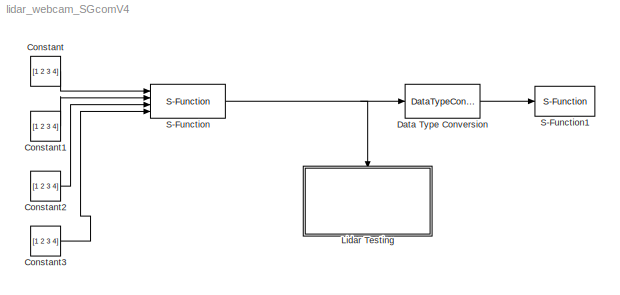
MODEL lidar_webcam_SGcomV4
KIND model
BLOCK [Constant] Constant
  OutDataType = fixdt(1, 16)
  OutDataTypeMode = double
  OutDataTypeStr = double
  OutScaling = 2^0
  Value = [1 2 3 4]
  VectorParams1D = off
BLOCK [Constant] Constant1
  OutDataType = fixdt(1, 16)
  OutDataTypeMode = int32
  OutDataTypeStr = int32
  OutScaling = 2^0
  Value = [1 2 3 4]
  VectorParams1D = off
BLOCK [Constant] Constant2
  OutDataType = fixdt(1, 16)
  OutDataTypeMode = int32
  OutDataTypeStr = int32
  OutScaling = 2^0
  Value = [1 2 3 4]
  VectorParams1D = off
BLOCK [Constant] Constant3
  OutDataType = fixdt(1, 16)
  OutDataTypeMode = int32
  OutDataTypeStr = int32
  OutScaling = 2^0
  Value = [1 2 3 4]
  VectorParams1D = off
BLOCK [DataTypeConversion] Data Type Conversion
  OutDataType = fixdt(1, 16)
  OutDataTypeMode = uint32
  OutDataTypeStr = uint32
  OutScaling = 2^0
  RndMeth = Floor
  SaturateOnIntegerOverflow = off
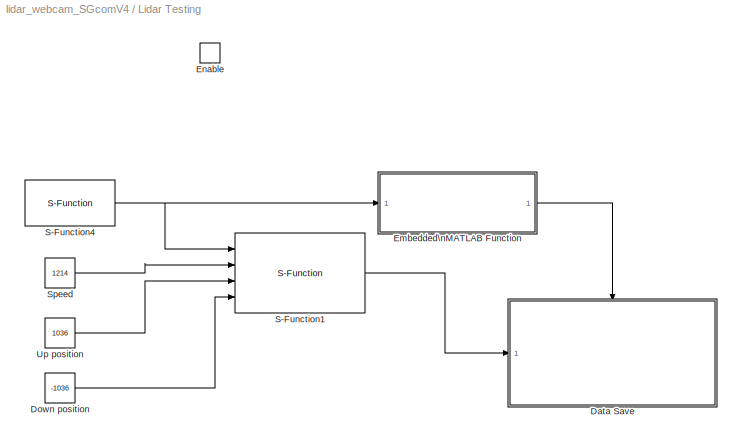
BLOCK [SubSystem] Lidar Testing
  FunctionWithSeparateData = off
  MaskHideContents = off
  MinAlgLoopOccurrences = off
  Opaque = off
  Ports = [0, 0, 1]
  PropExecContextOutsideSubsystem = off
  RTWSystemCode = Auto
  RequestExecContextInheritance = off
  TreatAsAtomicUnit = on
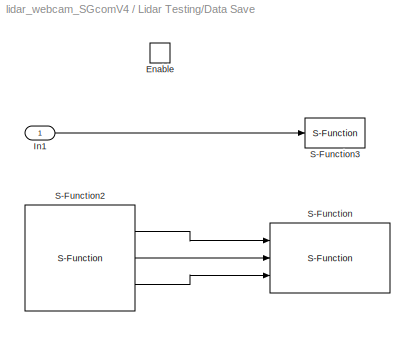
BLOCK [SubSystem] Lidar Testing/Data Save
  FunctionWithSeparateData = off
  MaskHideContents = off
  MinAlgLoopOccurrences = off
  Opaque = off
  Ports = [1, 0, 1]
  PropExecContextOutsideSubsystem = off
  RTWSystemCode = Auto
  RequestExecContextInheritance = off
  TreatAsAtomicUnit = on
BLOCK [EnablePort] Lidar Testing/Data Save/Enable
  Ports = []
BLOCK [Inport] Lidar Testing/Data Save/In1
  IconDisplay = Port number
  OutDataType = fixdt(1, 16)
  OutScaling = 2^0
BLOCK [S-Function] Lidar Testing/Data Save/S-Function
  EnableBusSupport = off
  FunctionName = videoExport_v2
  Ports = [3]
BLOCK [S-Function] Lidar Testing/Data Save/S-Function2
  EnableBusSupport = off
  FunctionName = WebcamTest
  Ports = [0, 3]
BLOCK [S-Function] Lidar Testing/Data Save/S-Function3
  EnableBusSupport = off
  FunctionName = lidarExport
  Ports = [1]
BLOCK [Constant] Lidar Testing/Down position
  OutDataType = fixdt(1, 16)
  OutScaling = 2^0
  Value = -1036
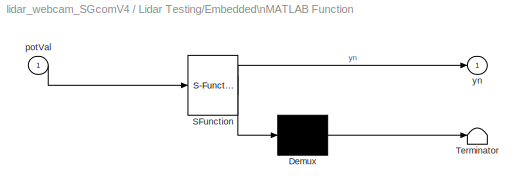
BLOCK [SubSystem] Lidar Testing/Embedded\nMATLAB Function
  FunctionWithSeparateData = off
  MaskDescription = Embedded MATLAB block
  MaskDisplay = disp('check_pot_val');
  MaskHideContents = off
  MaskIconFrame = on
  MaskIconOpaque = off
  MaskIconRotate = none
  MaskIconUnits = autoscale
  MaskPortRotate = default
  MaskSelfModifiable = on
  MaskType = Stateflow
  MinAlgLoopOccurrences = off
  Opaque = off
  PermitHierarchicalResolution = ExplicitOnly
  Ports = [1, 1]
  PropExecContextOutsideSubsystem = off
  RTWSystemCode = Auto
  RequestExecContextInheritance = off
BLOCK [Demux] Lidar Testing/Embedded\nMATLAB Function/ Demux 
  Outputs = 1
  Ports = [1, 1]
BLOCK [S-Function] Lidar Testing/Embedded\nMATLAB Function/ SFunction 
  EnableBusSupport = on
  FunctionName = sf_sfun
  PortCounts = [1 2]
  Ports = [1, 2]
  Tag = Stateflow S-Function lidar_webcam_SGcomV4 2
BLOCK [Terminator] Lidar Testing/Embedded\nMATLAB Function/ Terminator 
BLOCK [Inport] Lidar Testing/Embedded\nMATLAB Function/potVal
  IconDisplay = Port number
  OutDataType = sfix(16)
  OutScaling = 2^0
BLOCK [Outport] Lidar Testing/Embedded\nMATLAB Function/yn
  IconDisplay = Port number
  OutDataType = sfix(16)
  OutScaling = 2^0
BLOCK [EnablePort] Lidar Testing/Enable
  Ports = []
BLOCK [S-Function] Lidar Testing/S-Function1
  EnableBusSupport = off
  FunctionName = lidar_zero_test_v3
  Ports = [4, 1]
BLOCK [S-Function] Lidar Testing/S-Function4
  EnableBusSupport = off
  FunctionName = pot_readerV2
  Ports = [0, 1]
BLOCK [Constant] Lidar Testing/Speed
  OutDataType = fixdt(1, 16)
  OutScaling = 2^0
  Value = 1214
BLOCK [Constant] Lidar Testing/Up position
  OutDataType = fixdt(1, 16)
  OutScaling = 2^0
  Value = 1036
BLOCK [S-Function] S-Function
  EnableBusSupport = off
  FunctionName = serialComV1
  Ports = [4, 1]
BLOCK [S-Function] S-Function1
  EnableBusSupport = off
  FunctionName = printOut
  Ports = [1]
LINE Constant1:1 -> S-Function:2
LINE Constant2:1 -> S-Function:3
LINE Constant3:1 -> S-Function:4
LINE Constant:1 -> S-Function:1
LINE Data Type Conversion:1 -> S-Function1:1
LINE Lidar Testing/Data Save/In1:1 -> Lidar Testing/Data Save/S-Function3:1
LINE Lidar Testing/Data Save/S-Function2:1 -> Lidar Testing/Data Save/S-Function:1
LINE Lidar Testing/Data Save/S-Function2:2 -> Lidar Testing/Data Save/S-Function:2
LINE Lidar Testing/Data Save/S-Function2:3 -> Lidar Testing/Data Save/S-Function:3
LINE Lidar Testing/Down position:1 -> Lidar Testing/S-Function1:4
LINE Lidar Testing/Embedded\nMATLAB Function/ Demux :1 -> Lidar Testing/Embedded\nMATLAB Function/ Terminator :1
LINE Lidar Testing/Embedded\nMATLAB Function/ SFunction :1 -> Lidar Testing/Embedded\nMATLAB Function/ Demux :1
LINE Lidar Testing/Embedded\nMATLAB Function/ SFunction :2 -> Lidar Testing/Embedded\nMATLAB Function/yn:1
LINE Lidar Testing/Embedded\nMATLAB Function/potVal:1 -> Lidar Testing/Embedded\nMATLAB Function/ SFunction :1
LINE Lidar Testing/Embedded\nMATLAB Function:1 -> Lidar Testing/Data Save:enable
LINE Lidar Testing/S-Function1:1 -> Lidar Testing/Data Save:1
NET Lidar Testing/S-Function4:1 -> Lidar Testing/Embedded\nMATLAB Function:1, Lidar Testing/S-Function1:1
LINE Lidar Testing/Speed:1 -> Lidar Testing/S-Function1:2
LINE Lidar Testing/Up position:1 -> Lidar Testing/S-Function1:3
NET S-Function:1 -> Data Type Conversion:1, Lidar Testing:enable
note: NET lines group one-source signal fan-out (src -> all destinations, sorted); 1:1 wires keep LINE
CHART Lidar Testing/Embedded\nMATLAB Function states=1 transitions=1
  STATE_LABEL 'eML_blk_kernel()'
